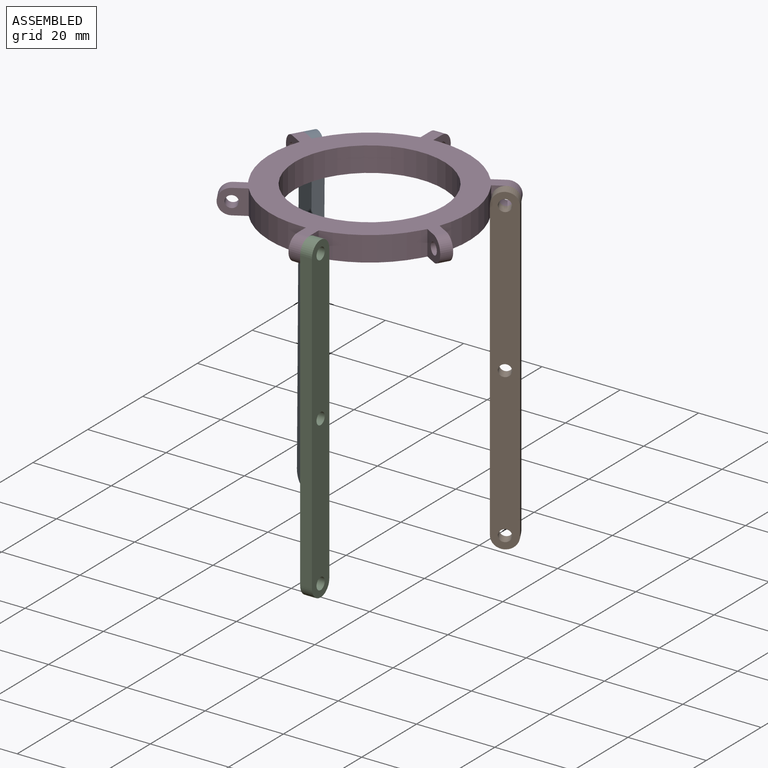
[diagram: assembled view]
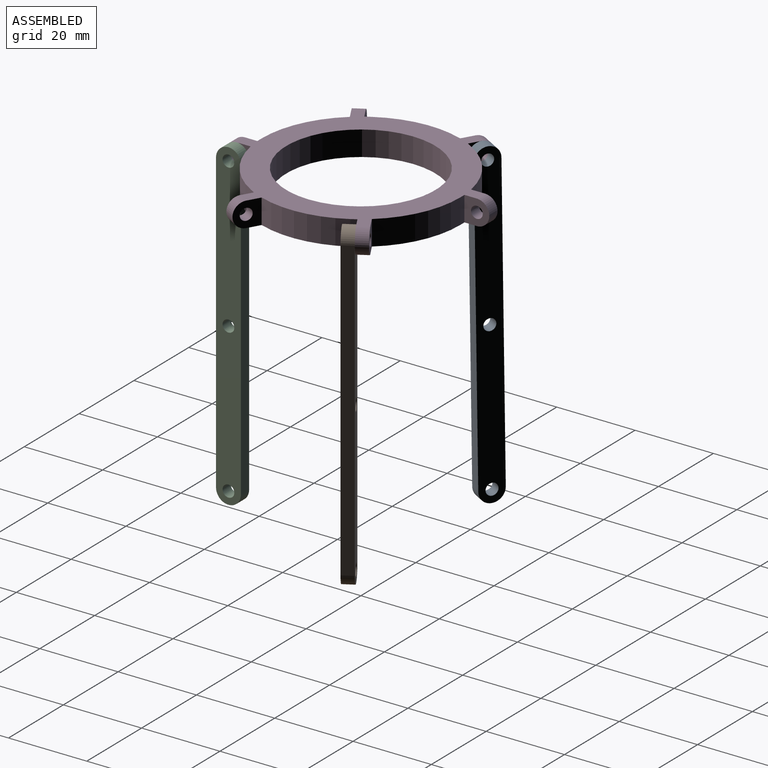
[diagram: assembled view, second angle]
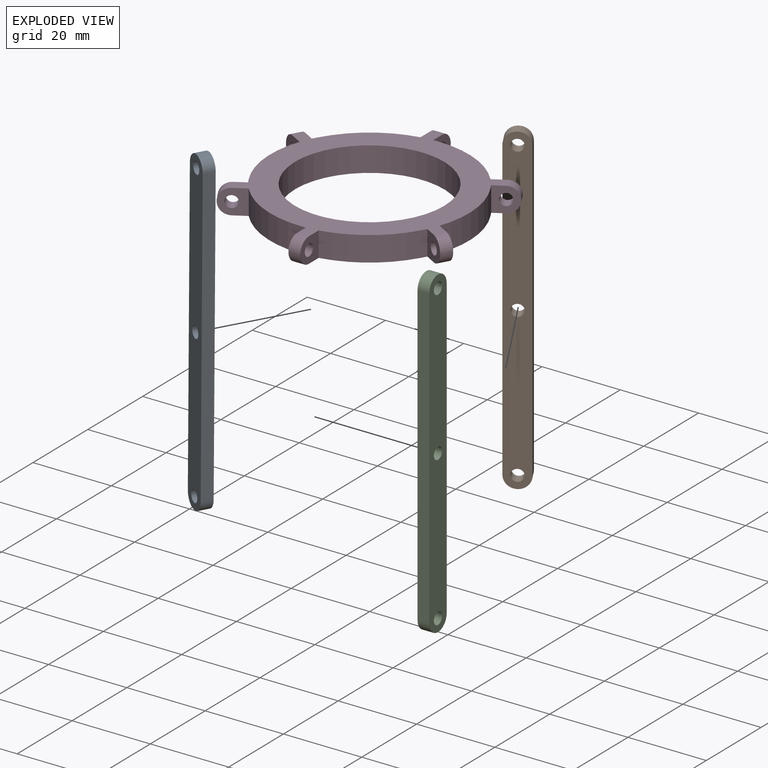
[diagram: exploded view]
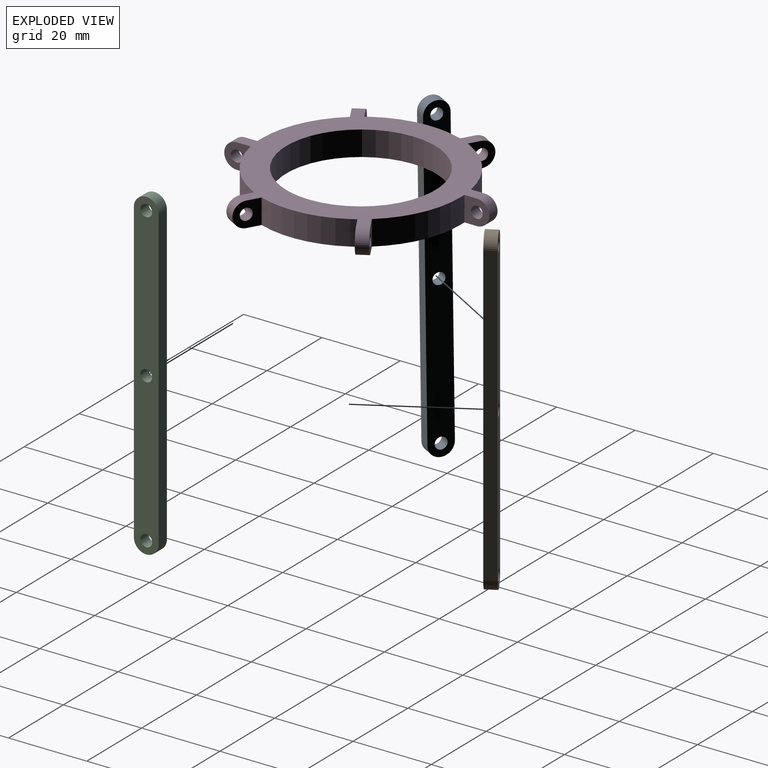
[diagram: exploded view, second angle]
ASSEMBLY  parts=4 mates=3
PART A: 9 faces, bbox 6.4x82.6x3 mm
  f0: plane 76.2x3mm, normal (-1,0,0), area 228.6mm2, adj f1,f3,f7,f8
  f1: cylinder r=3.17mm len=6.35mm, axis (0,0,-1), area 29.9mm2, adj f0,f2,f7,f8
  f2: plane 76.2x3mm, normal (1,0,0), area 228.6mm2, adj f1,f3,f7,f8
  f3: cylinder r=3.17mm len=6.35mm, axis (0,0,-1), area 29.9mm2, adj f0,f2,f7,f8
  f4: cylinder r=1.5mm len=3mm, axis (0,0,-1), area 28.3mm2, adj f7,f8
  f5: cylinder r=1.5mm len=3mm, axis (0,0,-1), area 28.3mm2, adj f7,f8
  f6: cylinder r=1.5mm len=3mm, axis (0,0,-1), area 28.3mm2, adj f7,f8
  f7: plane 82.55x6.35mm, normal (0,0,1), area 494.3mm2, adj f0,f1,f2,f3,f4,f5,f6
  f8: plane 82.55x6.35mm, normal (0,0,-1), area 494.3mm2, adj f0,f1,f2,f3,f4,f5,f6
PART B: same geometry as A
PART C: same geometry as A
PART D: 39 faces, bbox 59.5x63.5x6.4 mm
  f0: plane 6.75x6.35mm, normal (-1,0,0), area 31.5mm2, adj f1,f25,f26,f32,f33
  f1: cylinder r=25.4mm len=17.5mm, axis (0,0,-1), area 140.2mm2, adj f0,f2,f25,f26
  f2: plane 6.35x1.3mm, normal (-0.87,0.5,0), area 9.5mm2, adj f1,f3,f25,f26
  f3: plane 6.35x5.5mm, normal (0.5,0.87,0), area 28.9mm2, adj f2,f25,f26,f29,f38
  f4: plane 6.35x5.85mm, normal (-0.5,-0.87,0), area 31.5mm2, adj f5,f25,f26,f29,f38
  f5: cylinder r=25.4mm len=21.3mm, axis (0,0,-1), area 140.2mm2, adj f4,f6,f25,f26
  f6: plane 6.35x1.3mm, normal (-0.87,-0.5,0), area 9.5mm2, adj f5,f7,f25,f26
  f7: plane 6.35x5.5mm, normal (-0.5,0.87,0), area 28.9mm2, adj f6,f25,f26,f30,f37
  f8: plane 6.35x5.85mm, normal (0.5,-0.87,0), area 31.5mm2, adj f9,f25,f26,f30,f37
  f9: cylinder r=25.4mm len=19.4mm, axis (0,0,-1), area 140.2mm2, adj f8,f10,f25,f26
  f10: plane 6.35x1.5mm, normal (0,-1,0), area 9.5mm2, adj f9,f11,f25,f26
  f11: plane 6.35x6.35mm, normal (-1,0,0), area 28.9mm2, adj f10,f25,f26,f31,f36
  f12: plane 6.75x6.35mm, normal (1,0,0), area 31.5mm2, adj f13,f25,f26,f31,f36
  f13: cylinder r=25.4mm len=17.5mm, axis (0,0,-1), area 140.2mm2, adj f12,f14,f25,f26
  f14: plane 6.35x1.3mm, normal (0.87,-0.5,0), area 9.5mm2, adj f13,f15,f25,f26
  f15: plane 6.35x5.5mm, normal (-0.5,-0.87,0), area 28.9mm2, adj f14,f25,f26,f27,f35
  f16: plane 6.35x5.85mm, normal (0.5,0.87,0), area 31.5mm2, adj f17,f25,f26,f27,f35
  f17: cylinder r=25.4mm len=21.3mm, axis (0,0,-1), area 140.2mm2, adj f16,f18,f25,f26
  f18: plane 6.35x1.3mm, normal (0.87,0.5,0), area 9.5mm2, adj f17,f19,f25,f26
  f19: plane 6.35x5.5mm, normal (0.5,-0.87,0), area 28.9mm2, adj f18,f25,f26,f28,f34
  f20: plane 6.35x5.85mm, normal (-0.5,0.87,0), area 31.5mm2, adj f21,f25,f26,f28,f34
  f21: cylinder r=25.4mm len=19.4mm, axis (0,0,-1), area 140.2mm2, adj f20,f22,f25,f26
  f22: plane 6.35x1.5mm, normal (0,1,0), area 9.5mm2, adj f21,f23,f25,f26
  f23: plane 6.35x6.35mm, normal (1,0,0), area 28.9mm2, adj f22,f25,f26,f32,f33
  f24: cylinder r=19.05mm len=38.1mm, axis (0,0,-1), area 760.1mm2, adj f25,f26
  f25: plane 57.15x53.99mm, normal (0,0,1), area 947.5mm2, adj f0,f1,f2,f3,f4,f5,f6,f7
  f26: plane 57.15x53.99mm, normal (0,0,-1), area 947.5mm2, adj f0,f1,f2,f3,f4,f5,f6,f7
  f27: cylinder r=3.17mm len=6.35mm, axis (-0.5,-0.87,0), area 29.9mm2, adj f15,f16,f25,f26
  f28: cylinder r=3.17mm len=6.35mm, axis (0.5,-0.87,0), area 29.9mm2, adj f19,f20,f25,f26
  f29: cylinder r=3.17mm len=6.35mm, axis (0.5,0.87,0), area 29.9mm2, adj f3,f4,f25,f26
  f30: cylinder r=3.17mm len=6.35mm, axis (-0.5,0.87,0), area 29.9mm2, adj f7,f8,f25,f26
  f31: cylinder r=3.17mm len=6.35mm, axis (-1,0,0), area 29.9mm2, adj f11,f12,f25,f26
  f32: cylinder r=3.17mm len=6.35mm, axis (1,0,0), area 29.9mm2, adj f0,f23,f25,f26
  f33: cylinder r=1.5mm len=3mm, axis (-1,0,0), area 28.3mm2, adj f0,f23
  f34: cylinder r=1.5mm len=4.1mm, axis (-0.5,0.87,0), area 28.3mm2, adj f19,f20
  f35: cylinder r=1.5mm len=4.1mm, axis (0.5,0.87,0), area 28.3mm2, adj f15,f16
  f36: cylinder r=1.5mm len=3mm, axis (1,0,0), area 28.3mm2, adj f11,f12
  f37: cylinder r=1.5mm len=4.1mm, axis (0.5,-0.87,0), area 28.3mm2, adj f7,f8
  f38: cylinder r=1.5mm len=4.1mm, axis (-0.5,-0.87,0), area 28.3mm2, adj f3,f4
PLACE A rot(axis=(0.19,0.69,0.7),159.4deg) t=(-26.37,13.49,-73.02)mm
PLACE B rot(axis=(0.94,0.25,0.25),93.8deg) t=(24,15.59,-73.03)mm
PLACE C rot(axis=(0.58,0.58,0.58),120deg) t=(4.5,-28.58,-73.02)mm
PLACE D at identity
MATE revolute B.f5 <-> D.f34  axis (-0.5,0.87,0) through (24,15.59,3.17)mm
MATE revolute A.f5 <-> D.f29  axis (-0.5,-0.87,0) through (-25.5,12.99,3.17)mm
MATE revolute C.f5 <-> D.f31  axis (-1,0,0) through (4.5,-28.58,3.17)mm
